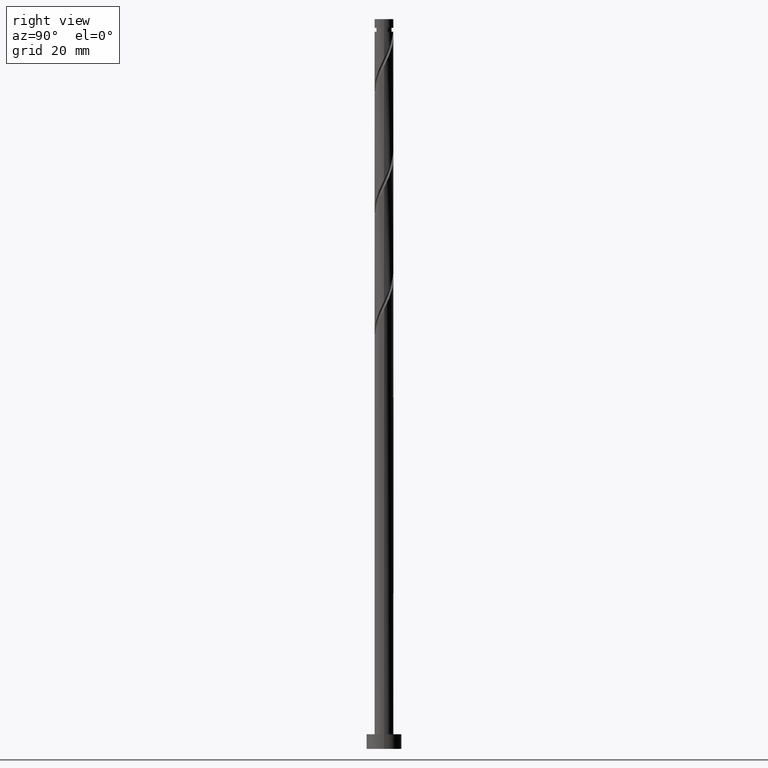
[diagram: clean part render]
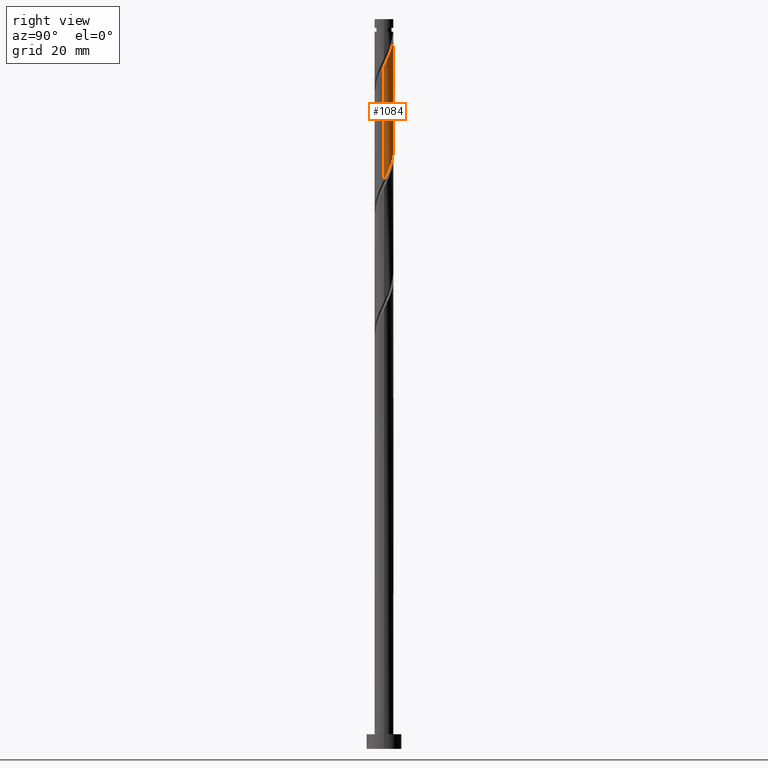
[diagram: same view with one face highlighted and labeled with its STEP entity id]
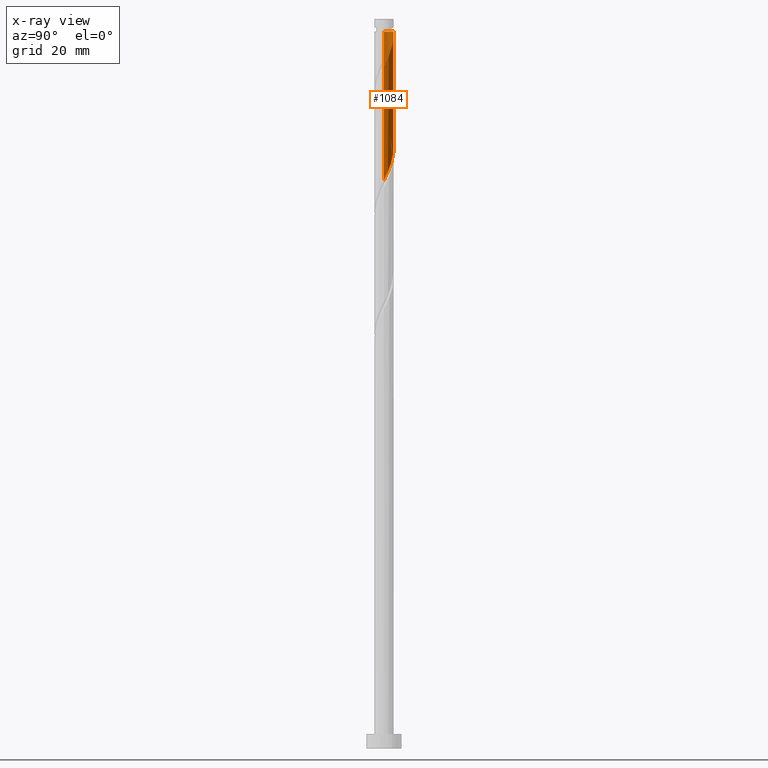
[diagram: x-ray of the same camera — body ghosted, the highlighted face saturated]
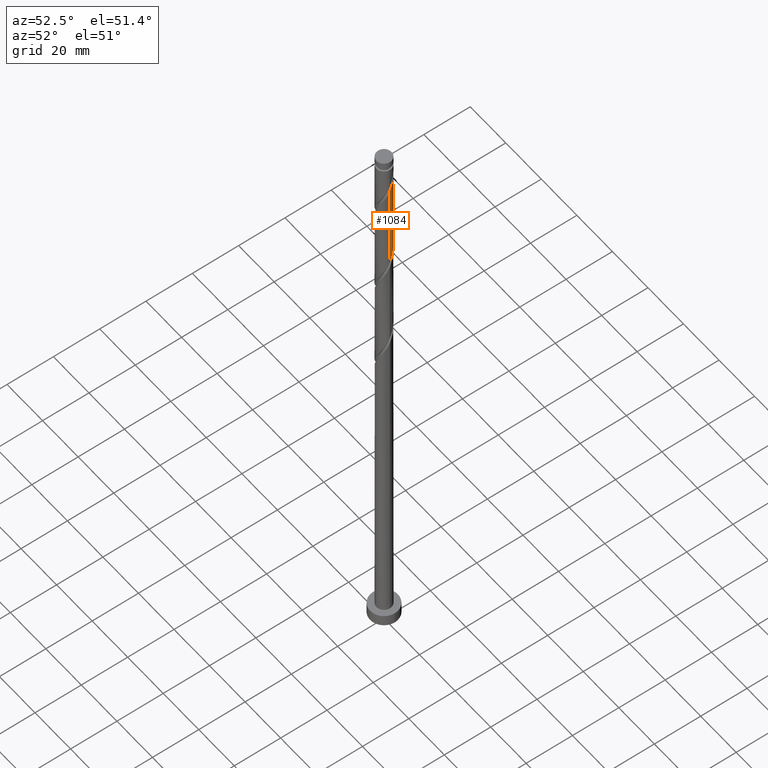
[diagram: same view with one face highlighted and labeled with its STEP entity id]
A machine part, right view. The second image highlights one B-rep face of the part: STEP entity #1084.
The next image is the same camera in x-ray: the body ghosted, the highlighted face saturated — about 0% of this face is hidden behind the body in this view.
A second angle (auxiliary view) of the same face is appended — the face is thin or edge-on in the first view.
In plain terms, the highlighted cylindrical surface (edge-blend (fillet) strip) has radius 3.25 mm, axis along (-0, -0, -1).
Its self-contained STEP definition (entity closure, byte-faithful):
#7 = DIRECTION ( 'NONE',  ( -0.000000000000000000, -0.000000000000000000, -1.000000000000000000 ) ) ;
#64 = DIRECTION ( 'NONE',  ( -0.000000000000000000, -0.000000000000000000, -1.000000000000000000 ) ) ;
#78 = CARTESIAN_POINT ( 'NONE',  ( -1.627952452366741465, 2.812875897161677852, 208.8321463082183129 ) ) ;
#79 = VERTEX_POINT ( 'NONE', #1832 ) ;
#85 = CARTESIAN_POINT ( 'NONE',  ( -2.538127330985530783, 2.067881944631015934, 211.2359924620644449 ) ) ;
#95 = CARTESIAN_POINT ( 'NONE',  ( 2.959250504853449648, 1.400379425281348400, 236.8770181030900801 ) ) ;
#106 = CARTESIAN_POINT ( 'NONE',  ( -0.5285562154176360883, 3.230921604182012352, 206.4283001543721525 ) ) ;
#146 = EDGE_CURVE ( 'NONE', #947, #79, #1707, .T. ) ;
#187 = CARTESIAN_POINT ( 'NONE',  ( 3.250000000000004441, -1.719932931327951280E-15, 233.9465321246341318 ) ) ;
#214 = CARTESIAN_POINT ( 'NONE',  ( 3.250000000000004441, -1.719932931327951280E-15, 233.9465321246341318 ) ) ;
#232 = CARTESIAN_POINT ( 'NONE',  ( 2.748688917919491992, 1.734130684956183499, 237.6783001543720957 ) ) ;
#233 = VERTEX_POINT ( 'NONE', #187 ) ;
#234 = EDGE_CURVE ( 'NONE', #233, #1040, #739, .T. ) ;
#246 = VERTEX_POINT ( 'NONE', #608 ) ;
#248 = CARTESIAN_POINT ( 'NONE',  ( 2.358742199564649145, 2.270365900294400774, 200.0180437441157153 ) ) ;
#280 = DIRECTION ( 'NONE',  ( -1.000000000000000000, 0.000000000000000000, 0.000000000000000000 ) ) ;
#343 = CARTESIAN_POINT ( 'NONE',  ( 0.000000000000000000, 0.000000000000000000, 245.6911206671926777 ) ) ;
#356 = CARTESIAN_POINT ( 'NONE',  ( 1.746867314480051059, 2.768877149825889283, 201.6206078466798033 ) ) ;
#361 = CARTESIAN_POINT ( 'NONE',  ( -3.250000000000000444, 0.000000000000000000, 250.0000000000000000 ) ) ;
#389 = CARTESIAN_POINT ( 'NONE',  ( 3.239733877669285445, 0.2581170313674792105, 234.4731719492440050 ) ) ;
#467 = ORIENTED_EDGE ( 'NONE', *, *, #1517, .F. ) ;
#481 = CARTESIAN_POINT ( 'NONE',  ( 3.250000000000000444, 3.980102097228898231E-16, 250.0000000000000000 ) ) ;
#489 = CARTESIAN_POINT ( 'NONE',  ( -0.1342716989306157460, 3.247225140156789092, 205.6270181030901369 ) ) ;
#519 = CARTESIAN_POINT ( 'NONE',  ( 0.6467418341193049702, 3.184999999999999165, 204.0244540005260490 ) ) ;
#535 = CARTESIAN_POINT ( 'NONE',  ( -0.6467418341193037490, 3.185000000000003162, 245.6911206671926209 ) ) ;
#585 = FACE_OUTER_BOUND ( 'NONE', #1802, .T. ) ;
#608 = CARTESIAN_POINT ( 'NONE',  ( -3.249999999999999112, 4.412001867319556709E-15, 215.7690425430845380 ) ) ;
#638 = CARTESIAN_POINT ( 'NONE',  ( 1.286407482375278466, 3.010545112519593225, 241.6847104107824293 ) ) ;
#639 = ORIENTED_EDGE ( 'NONE', *, *, #1356, .F. ) ;
#646 = VECTOR ( 'NONE', #1063, 1000.000000000000000 ) ;
#649 = CARTESIAN_POINT ( 'NONE',  ( 1.390169082581129256, 2.937674236847159559, 202.4218898979619325 ) ) ;
#656 = CARTESIAN_POINT ( 'NONE',  ( 1.627952452366745684, 2.812875897161679628, 240.8834283595003569 ) ) ;
#673 = CARTESIAN_POINT ( 'NONE',  ( 3.207364547986603753, 0.5247024455047700764, 196.0116334877055237 ) ) ;
#739 = LINE ( 'NONE', #481, #646 ) ;
#780 = CARTESIAN_POINT ( 'NONE',  ( 3.083821650335326403, 1.025935684593887620, 236.0757360518080930 ) ) ;
#795 = DIRECTION ( 'NONE',  ( -0.000000000000000000, -0.000000000000000000, -1.000000000000000000 ) ) ;
#800 = CARTESIAN_POINT ( 'NONE',  ( 2.253812376671874063, 2.341544313217391871, 239.2808642569362974 ) ) ;
#810 = CARTESIAN_POINT ( 'NONE',  ( -2.748688917919487995, 1.734130684956181945, 212.0372745133465457 ) ) ;
#811 = AXIS2_PLACEMENT_3D ( 'NONE', #1001, #7, #280 ) ;
#817 = CARTESIAN_POINT ( 'NONE',  ( 3.250000000000000000, 4.815812207718297189E-15, 194.9357092097512805 ) ) ;
#825 = CARTESIAN_POINT ( 'NONE',  ( 0.9074818488964597751, 3.120733358350804121, 242.4859924620644449 ) ) ;
#836 = CARTESIAN_POINT ( 'NONE',  ( 3.250000000000000000, 4.815812207718297189E-15, 194.9357092097512520 ) ) ;
#856 = AXIS2_PLACEMENT_3D ( 'NONE', #343, #64, #1594 ) ;
#880 = CYLINDRICAL_SURFACE ( 'NONE', #811, 3.250000000000000444 ) ;
#889 = EDGE_CURVE ( 'NONE', #947, #246, #918, .T. ) ;
#918 = LINE ( 'NONE', #361, #1106 ) ;
#923 = CARTESIAN_POINT ( 'NONE',  ( 1.033470850682205677, 3.106471323868431167, 203.2231719492439765 ) ) ;
#947 = VERTEX_POINT ( 'NONE', #1279 ) ;
#962 = CARTESIAN_POINT ( 'NONE',  ( 2.538127330985536112, 2.067881944631015934, 238.4795822056541681 ) ) ;
#970 = CARTESIAN_POINT ( 'NONE',  ( -0.2600128175563934385, 3.263528676131572048, 244.8898386159106622 ) ) ;
#1001 = CARTESIAN_POINT ( 'NONE',  ( 0.000000000000000000, 0.000000000000000000, 250.0000000000000000 ) ) ;
#1040 = VERTEX_POINT ( 'NONE', #836 ) ;
#1061 = CARTESIAN_POINT ( 'NONE',  ( -3.208392795817199605, 0.6514919439064297269, 214.4411206671927346 ) ) ;
#1063 = DIRECTION ( 'NONE',  ( -0.000000000000000000, -0.000000000000000000, -1.000000000000000000 ) ) ;
#1070 = CARTESIAN_POINT ( 'NONE',  ( -2.959250504853443875, 1.400379425281347956, 212.8385565646285613 ) ) ;
#1077 = CARTESIAN_POINT ( 'NONE',  ( -0.9074818488964560004, 3.120733358350801456, 207.2295822056542534 ) ) ;
#1084 = ADVANCED_FACE ( 'NONE', ( #585 ), #880, .T. ) ;
#1087 = CARTESIAN_POINT ( 'NONE',  ( -3.249999999999998668, 0.1292626735945084926, 215.5048716274516210 ) ) ;
#1099 = CARTESIAN_POINT ( 'NONE',  ( 3.208392795817203602, 0.6514919439064295048, 235.2744540005260205 ) ) ;
#1102 =( BOUNDED_CURVE ( )  B_SPLINE_CURVE ( 2, ( #214, #1523, #389, #1099, #780, #95, #232, #962, #800, #1798, #656, #638, #825, #1243, #1388, #970, #535 ),
 .UNSPECIFIED., .F., .T. ) 
 B_SPLINE_CURVE_WITH_KNOTS ( ( 3, 2, 2, 2, 2, 2, 2, 2, 3 ),
 ( 0.6795271625973831053, 0.6826923076923077094, 0.6923076923076922906, 0.7019230769230767608, 0.7115384615384614531, 0.7211538461538460343, 0.7307692307692306155, 0.7403846153846151967, 0.7499999999999997780 ),
 .UNSPECIFIED. ) 
 CURVE ( )  GEOMETRIC_REPRESENTATION_ITEM ( )  RATIONAL_B_SPLINE_CURVE ( ( 0.9061636035682920642, 0.9069090390690806025, 0.9090909090909373713, 0.9024626128164408012, 0.9090909090909373713, 0.9024626128164408012, 0.9090909090909373713, 0.9024626128164408012, 0.9090909090909373713, 0.9024626128164408012, 0.9090909090909373713, 0.9024626128164408012, 0.9090909090909373713, 0.9024626128164408012, 0.9090909090909373713, 0.9024626128164409122, 0.9090909090909372603 ) ) 
 REPRESENTATION_ITEM ( '' )  );
#1106 = VECTOR ( 'NONE', #795, 1000.000000000000000 ) ;
#1206 = CARTESIAN_POINT ( 'NONE',  ( -1.286407482375275357, 3.010545112519589228, 208.0308642569362974 ) ) ;
#1218 = CARTESIAN_POINT ( 'NONE',  ( -3.083821650335321962, 1.025935684593889397, 213.6398386159106622 ) ) ;
#1219 = ORIENTED_EDGE ( 'NONE', *, *, #889, .F. ) ;
#1227 = CARTESIAN_POINT ( 'NONE',  ( -2.253812376671869622, 2.341544313217390982, 210.4347104107824293 ) ) ;
#1243 = CARTESIAN_POINT ( 'NONE',  ( 0.5285562154176385308, 3.230921604182017681, 243.2872745133465742 ) ) ;
#1279 = CARTESIAN_POINT ( 'NONE',  ( -3.249999999999982681, 0.000000000000000000, 245.6911206671926777 ) ) ;
#1346 = CARTESIAN_POINT ( 'NONE',  ( -3.239733877669281892, 0.2581170313674815975, 215.2424027184747786 ) ) ;
#1355 = CARTESIAN_POINT ( 'NONE',  ( -3.249999999999999112, 4.412001867319556709E-15, 215.7690425430845380 ) ) ;
#1356 = EDGE_CURVE ( 'NONE', #246, #1040, #1658, .T. ) ;
#1362 = CARTESIAN_POINT ( 'NONE',  ( 2.988594849070721704, 1.277028123460071329, 197.6141975902696117 ) ) ;
#1378 = CARTESIAN_POINT ( 'NONE',  ( 2.596138880627123946, 1.955137568688235072, 199.2167616928336997 ) ) ;
#1388 = CARTESIAN_POINT ( 'NONE',  ( 0.1342716989306194375, 3.247225140156793977, 244.0885565646285613 ) ) ;
#1438 = ORIENTED_EDGE ( 'NONE', *, *, #146, .T. ) ;
#1494 = CARTESIAN_POINT ( 'NONE',  ( 2.833535561689597859, 1.639909237082068927, 198.4154796415516842 ) ) ;
#1517 = EDGE_CURVE ( 'NONE', #233, #79, #1102, .T. ) ;
#1523 = CARTESIAN_POINT ( 'NONE',  ( 3.250000000000005329, 0.1292626735944878147, 234.2107030402670773 ) ) ;
#1594 = DIRECTION ( 'NONE',  ( -1.000000000000000000, 0.000000000000000000, 0.000000000000000000 ) ) ;
#1628 = CARTESIAN_POINT ( 'NONE',  ( 3.143654136451844661, 0.9141470098380707343, 196.8129155389875677 ) ) ;
#1652 = CARTESIAN_POINT ( 'NONE',  ( 2.052804757022351545, 2.519621525060143696, 200.8193257953978446 ) ) ;
#1658 =( BOUNDED_CURVE ( )  B_SPLINE_CURVE ( 2, ( #1355, #1087, #1346, #1061, #1218, #1070, #810, #85, #1227, #1767, #78, #1206, #1077, #106, #489, #1788, #519, #923, #649, #356, #1652, #248, #1378, #1494, #1362, #1628, #673, #1758, #817 ),
 .UNSPECIFIED., .F., .T. ) 
 B_SPLINE_CURVE_WITH_KNOTS ( ( 3, 2, 2, 2, 2, 2, 2, 2, 2, 2, 2, 2, 2, 2, 3 ),
 ( 0.4295271625973835494, 0.4326923076923077094, 0.4423076923076922906, 0.4519230769230769273, 0.4615384615384615641, 0.4711538461538461453, 0.4807692307692307820, 0.4903846153846153633, 0.5000000000000000000, 0.5096153846153845812, 0.5192307692307692735, 0.5288461538461538547, 0.5384615384615384359, 0.5480769230769231282, 0.5545271625973831053 ),
 .UNSPECIFIED. ) 
 CURVE ( )  GEOMETRIC_REPRESENTATION_ITEM ( )  RATIONAL_B_SPLINE_CURVE ( ( 0.9061636035682862911, 0.9069090390690749404, 0.9090909090909312651, 0.9024626128164348060, 0.9090909090909312651, 0.9024626128164348060, 0.9090909090909312651, 0.9024626128164348060, 0.9090909090909312651, 0.9024626128164348060, 0.9090909090909312651, 0.9024626128164348060, 0.9090909090909312651, 0.9024626128164348060, 0.9090909090909312651, 0.9024626128164348060, 0.9090909090909312651, 0.9024626128164348060, 0.9090909090909312651, 0.9024626128164348060, 0.9090909090909312651, 0.9024626128164348060, 0.9090909090909312651, 0.9024626128164348060, 0.9090909090909312651, 0.9024626128164348060, 0.9090909090909312651, 0.9046444828382914638, 0.9061636035682859580 ) ) 
 REPRESENTATION_ITEM ( '' )  );
#1707 = CIRCLE ( 'NONE', #856, 3.249999999999982681 ) ;
#1758 = CARTESIAN_POINT ( 'NONE',  ( 3.249999999999998224, 0.2640834252454046793, 195.4754099470995641 ) ) ;
#1767 = CARTESIAN_POINT ( 'NONE',  ( -1.969497422358208016, 2.615206681803764255, 209.6334283595004422 ) ) ;
#1768 = ORIENTED_EDGE ( 'NONE', *, *, #234, .T. ) ;
#1788 = CARTESIAN_POINT ( 'NONE',  ( 0.2600128175564044852, 3.263528676131567607, 204.8257360518081214 ) ) ;
#1798 = CARTESIAN_POINT ( 'NONE',  ( 1.969497422358213345, 2.615206681803766919, 240.0821463082182561 ) ) ;
#1802 = EDGE_LOOP ( 'NONE', ( #467, #1768, #639, #1219, #1438 ) ) ;
#1832 = CARTESIAN_POINT ( 'NONE',  ( -0.6467418341193038600, 3.185000000000002718, 245.6911206671926209 ) ) ;